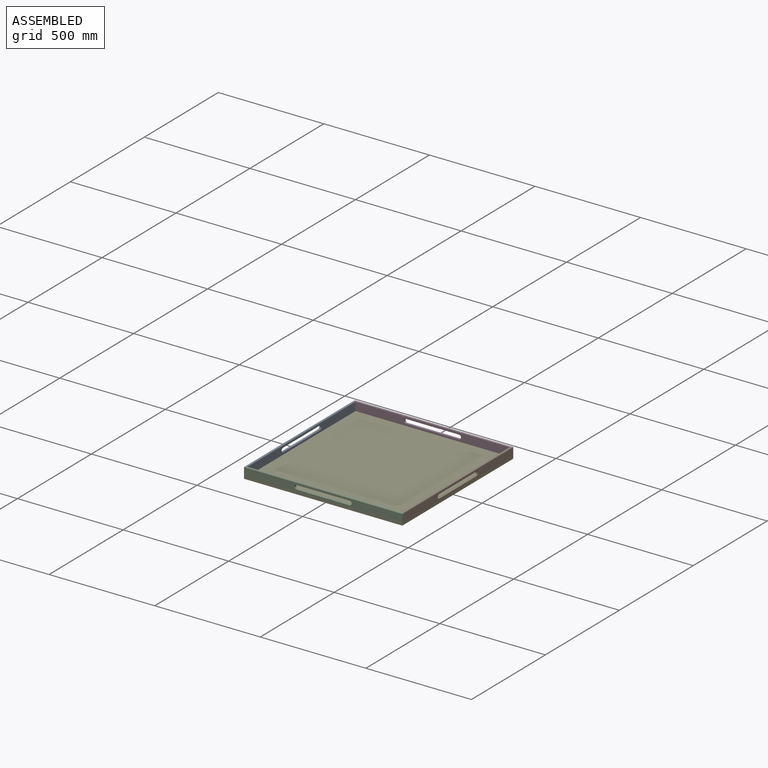
[diagram: assembled view]
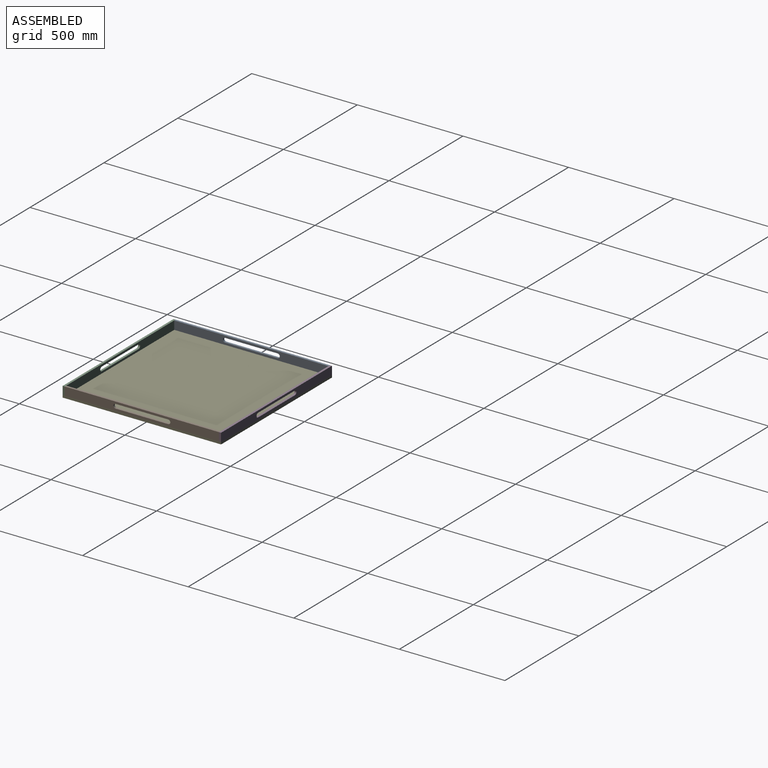
[diagram: assembled view, second angle]
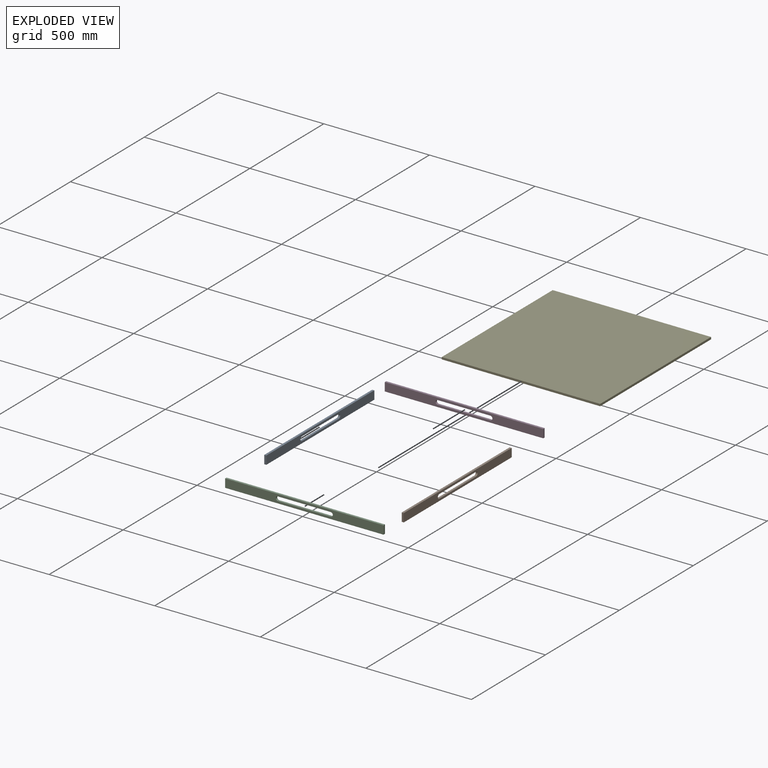
[diagram: exploded view]
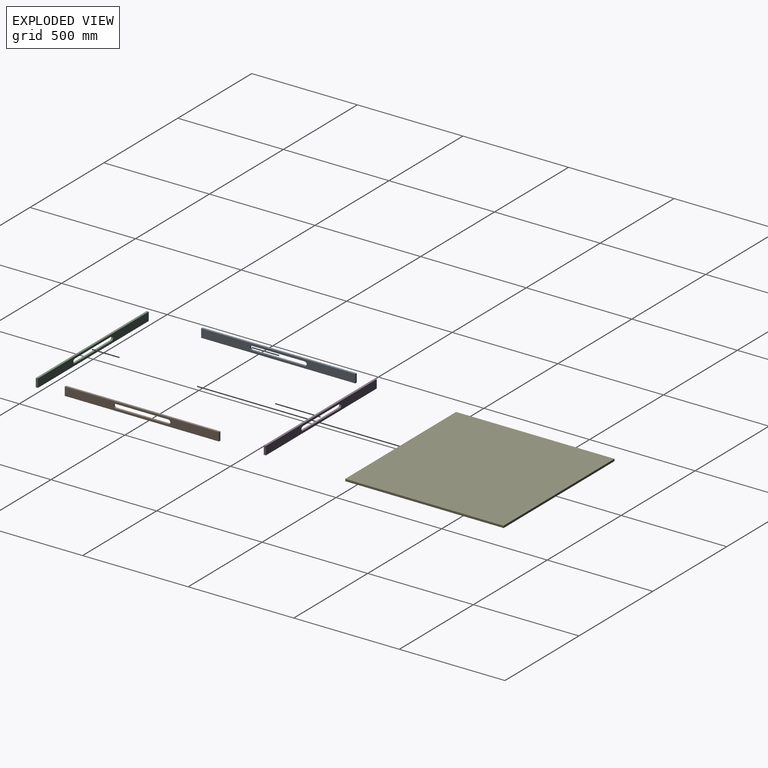
[diagram: exploded view, second angle]
ASSEMBLY  parts=5 mates=3
PART A: 14 faces, bbox 730x10x40 mm
  f0: plane 40x10mm, normal (1,0,0), area 400mm2, adj f1,f11,f12,f13
  f1: plane 730x10mm, normal (0,0,1), area 7300mm2, adj f0,f2,f12,f13
  f2: plane 40x10mm, normal (-1,0,0), area 400mm2, adj f1,f11,f12,f13
  f3: plane 10x0.14mm, normal (-1,0,0), area 1.4mm2, adj f4,f10,f12,f13
  f4: plane 250x10mm, normal (0,0,1), area 2500mm2, adj f3,f5,f12,f13
  f5: plane 10x0.11mm, normal (1,0,0), area 1.1mm2, adj f4,f6,f12,f13
  f6: cylinder r=9.89mm len=19.78mm, axis (0,1,0), area 310.7mm2, adj f5,f7,f12,f13
  f7: plane 10x0.11mm, normal (1,0,0), area 1.1mm2, adj f6,f8,f12,f13
  f8: plane 250x10mm, normal (0,0,-1), area 2500mm2, adj f7,f9,f12,f13
  f9: plane 10x0.14mm, normal (-1,0,0), area 1.4mm2, adj f8,f10,f12,f13
  f10: cylinder r=9.86mm len=19.72mm, axis (0,1,0), area 309.7mm2, adj f3,f9,f12,f13
  f11: plane 730x10mm, normal (0,0,-1), area 7300mm2, adj f0,f2,f12,f13
  f12: plane 730x40mm, normal (0,-1,0), area 23893.7mm2, adj f0,f1,f2,f3,f4,f5,f6,f7
  f13: plane 730x40mm, normal (0,1,0), area 23893.7mm2, adj f0,f1,f2,f3,f4,f5,f6,f7
PART B: same geometry as A
PART C: 14 faces, bbox 750x10x40 mm
  f0: plane 40x10mm, normal (1,0,0), area 400mm2, adj f1,f11,f12,f13
  f1: plane 750x10mm, normal (0,0,1), area 7500mm2, adj f0,f2,f12,f13
  f2: plane 40x10mm, normal (-1,0,0), area 400mm2, adj f1,f11,f12,f13
  f3: plane 10x0.14mm, normal (-1,0,0), area 1.4mm2, adj f4,f10,f12,f13
  f4: plane 250x10mm, normal (0,0,1), area 2500mm2, adj f3,f5,f12,f13
  f5: plane 10x0.11mm, normal (1,0,0), area 1.1mm2, adj f4,f6,f12,f13
  f6: cylinder r=9.89mm len=19.78mm, axis (0,1,0), area 310.7mm2, adj f5,f7,f12,f13
  f7: plane 10x0.11mm, normal (1,0,0), area 1.1mm2, adj f6,f8,f12,f13
  f8: plane 250x10mm, normal (0,0,-1), area 2500mm2, adj f7,f9,f12,f13
  f9: plane 10x0.14mm, normal (-1,0,0), area 1.4mm2, adj f8,f10,f12,f13
  f10: cylinder r=9.86mm len=19.72mm, axis (0,1,0), area 309.7mm2, adj f3,f9,f12,f13
  f11: plane 750x10mm, normal (0,0,-1), area 7500mm2, adj f0,f2,f12,f13
  f12: plane 750x40mm, normal (0,-1,0), area 24693.7mm2, adj f0,f1,f2,f3,f4,f5,f6,f7
  f13: plane 750x40mm, normal (0,1,0), area 24693.7mm2, adj f0,f1,f2,f3,f4,f5,f6,f7
PART D: same geometry as C
PART E: 6 faces, bbox 750x750x10 mm
  f0: plane 750x10mm, normal (1,0,0), area 7500mm2, adj f1,f3,f4,f5
  f1: plane 750x10mm, normal (0,1,0), area 7500mm2, adj f0,f2,f4,f5
  f2: plane 750x10mm, normal (-1,0,0), area 7500mm2, adj f1,f3,f4,f5
  f3: plane 750x10mm, normal (0,-1,0), area 7500mm2, adj f0,f2,f4,f5
  f4: plane 750x750mm, normal (0,0,1), area 562500mm2, adj f0,f1,f2,f3
  f5: plane 750x750mm, normal (0,0,-1), area 562500mm2, adj f0,f1,f2,f3
PLACE A rot(axis=(0,0,-1),90deg) t=(-355,0,30)mm
PLACE B rot(axis=(0,0,1),90deg) t=(375,0,30)mm
PLACE C t=(10,-365,30)mm
PLACE D t=(10,375,30)mm
PLACE E t=(10,0,0)mm
MATE fastened B.f2 <-> C.f13  axis (0,-1,0) through (385,-365,30)mm
MATE fastened C.f12 <-> E.f3  axis (0,-1,0) through (10,-375,10)mm
MATE fastened A.f0 <-> C.f13  axis (0,-1,0) through (-365,-365,30)mm
